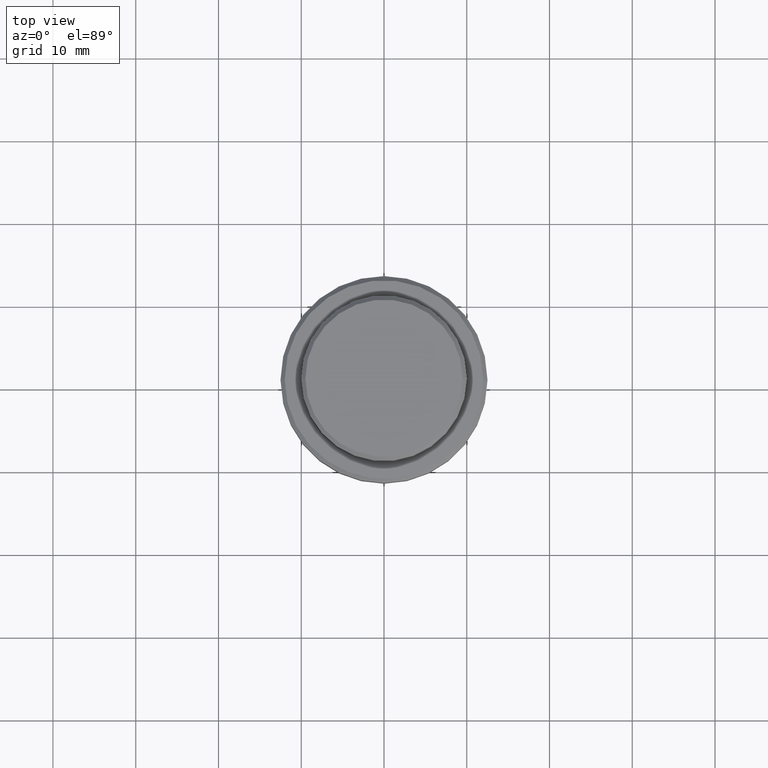
[diagram: clean part render]
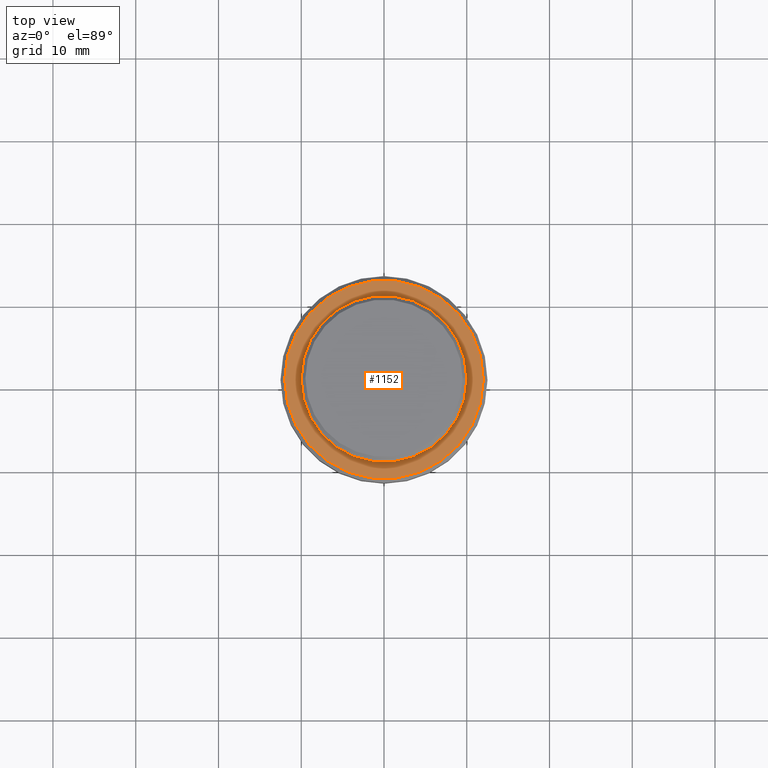
[diagram: same view with one face highlighted and labeled with its STEP entity id]
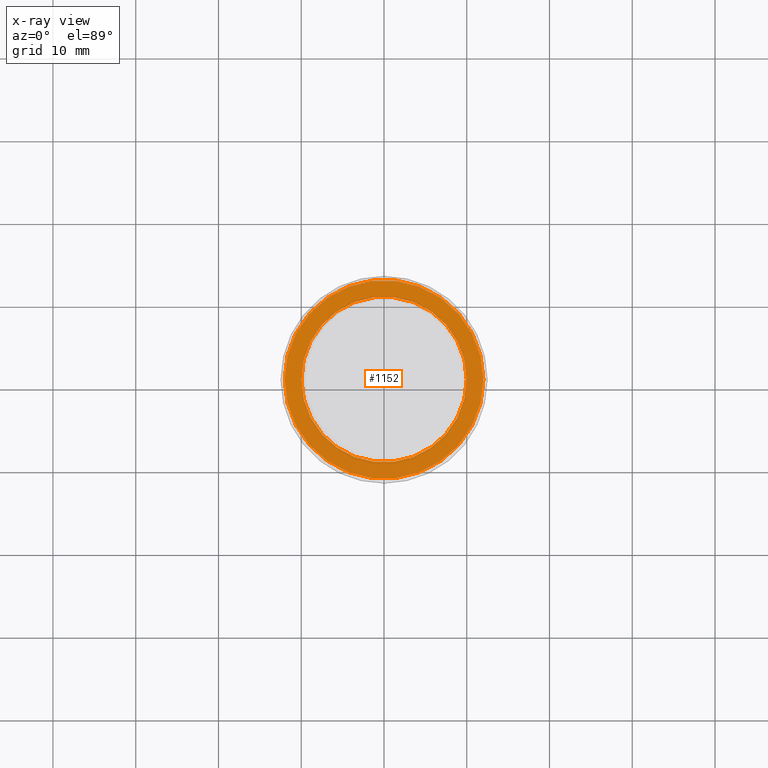
[diagram: x-ray of the same camera — body ghosted, the highlighted face saturated]
A machine part, top view. The second image highlights one B-rep face of the part: STEP entity #1152.
The next image is the same camera in x-ray: the body ghosted, the highlighted face saturated — about 0% of this face is hidden behind the body in this view.
In plain terms, the highlighted planar face has unit normal (0, -0, 1).
Its self-contained STEP definition (entity closure, byte-faithful):
#15 = CIRCLE ( 'NONE', #268, 12.00000000000002487 ) ;
#27 = CARTESIAN_POINT ( 'NONE',  ( 0.000000000000000000, 0.000000000000000000, -9.000000000000001776 ) ) ;
#45 = EDGE_LOOP ( 'NONE', ( #1018, #153 ) ) ;
#60 = FACE_BOUND ( 'NONE', #1378, .T. ) ;
#67 = EDGE_CURVE ( 'NONE', #242, #1344, #742, .T. ) ;
#113 = ORIENTED_EDGE ( 'NONE', *, *, #1257, .T. ) ;
#153 = ORIENTED_EDGE ( 'NONE', *, *, #1058, .T. ) ;
#175 = CIRCLE ( 'NONE', #999, 12.00000000000002487 ) ;
#222 = CARTESIAN_POINT ( 'NONE',  ( -12.00000000000002487, 0.000000000000000000, -9.000000000000001776 ) ) ;
#242 = VERTEX_POINT ( 'NONE', #831 ) ;
#268 = AXIS2_PLACEMENT_3D ( 'NONE', #27, #1221, #1228 ) ;
#276 = DIRECTION ( 'NONE',  ( 1.000000000000000000, 0.000000000000000000, 0.000000000000000000 ) ) ;
#378 = CARTESIAN_POINT ( 'NONE',  ( 0.000000000000000000, 0.000000000000000000, -9.000000000000001776 ) ) ;
#412 = PLANE ( 'NONE',  #770 ) ;
#414 = CARTESIAN_POINT ( 'NONE',  ( 12.00000000000002487, 1.500192328955509115E-15, -9.000000000000001776 ) ) ;
#419 = DIRECTION ( 'NONE',  ( 1.000000000000000000, 0.000000000000000000, 0.000000000000000000 ) ) ;
#521 = DIRECTION ( 'NONE',  ( 0.000000000000000000, -0.000000000000000000, 1.000000000000000000 ) ) ;
#618 = VERTEX_POINT ( 'NONE', #222 ) ;
#625 = CARTESIAN_POINT ( 'NONE',  ( -9.999999999999994671, 1.224646799147352665E-15, -9.000000000000001776 ) ) ;
#704 = CARTESIAN_POINT ( 'NONE',  ( 0.000000000000000000, 0.000000000000000000, -9.000000000000001776 ) ) ;
#742 = CIRCLE ( 'NONE', #1109, 9.999999999999994671 ) ;
#757 = DIRECTION ( 'NONE',  ( 0.000000000000000000, 0.000000000000000000, -1.000000000000000000 ) ) ;
#770 = AXIS2_PLACEMENT_3D ( 'NONE', #1359, #521, #942 ) ;
#823 = DIRECTION ( 'NONE',  ( 1.000000000000000000, 0.000000000000000000, 0.000000000000000000 ) ) ;
#831 = CARTESIAN_POINT ( 'NONE',  ( 9.999999999999994671, 0.000000000000000000, -9.000000000000001776 ) ) ;
#850 = FACE_OUTER_BOUND ( 'NONE', #45, .T. ) ;
#900 = DIRECTION ( 'NONE',  ( 0.000000000000000000, 0.000000000000000000, -1.000000000000000000 ) ) ;
#942 = DIRECTION ( 'NONE',  ( 1.000000000000000000, 0.000000000000000000, 0.000000000000000000 ) ) ;
#999 = AXIS2_PLACEMENT_3D ( 'NONE', #1159, #1255, #276 ) ;
#1018 = ORIENTED_EDGE ( 'NONE', *, *, #1236, .T. ) ;
#1058 = EDGE_CURVE ( 'NONE', #1395, #618, #175, .T. ) ;
#1109 = AXIS2_PLACEMENT_3D ( 'NONE', #704, #757, #419 ) ;
#1140 = AXIS2_PLACEMENT_3D ( 'NONE', #378, #900, #823 ) ;
#1152 = ADVANCED_FACE ( 'NONE', ( #850, #60 ), #412, .T. ) ;
#1159 = CARTESIAN_POINT ( 'NONE',  ( 0.000000000000000000, 0.000000000000000000, -9.000000000000001776 ) ) ;
#1221 = DIRECTION ( 'NONE',  ( -0.000000000000000000, -0.000000000000000000, 1.000000000000000000 ) ) ;
#1228 = DIRECTION ( 'NONE',  ( 1.000000000000000000, 0.000000000000000000, 0.000000000000000000 ) ) ;
#1236 = EDGE_CURVE ( 'NONE', #618, #1395, #15, .T. ) ;
#1255 = DIRECTION ( 'NONE',  ( -0.000000000000000000, -0.000000000000000000, 1.000000000000000000 ) ) ;
#1257 = EDGE_CURVE ( 'NONE', #1344, #242, #1385, .T. ) ;
#1343 = ORIENTED_EDGE ( 'NONE', *, *, #67, .T. ) ;
#1344 = VERTEX_POINT ( 'NONE', #625 ) ;
#1359 = CARTESIAN_POINT ( 'NONE',  ( 0.000000000000000000, 9.499999999999994671, -9.000000000000001776 ) ) ;
#1378 = EDGE_LOOP ( 'NONE', ( #1343, #113 ) ) ;
#1385 = CIRCLE ( 'NONE', #1140, 9.999999999999994671 ) ;
#1395 = VERTEX_POINT ( 'NONE', #414 ) ;